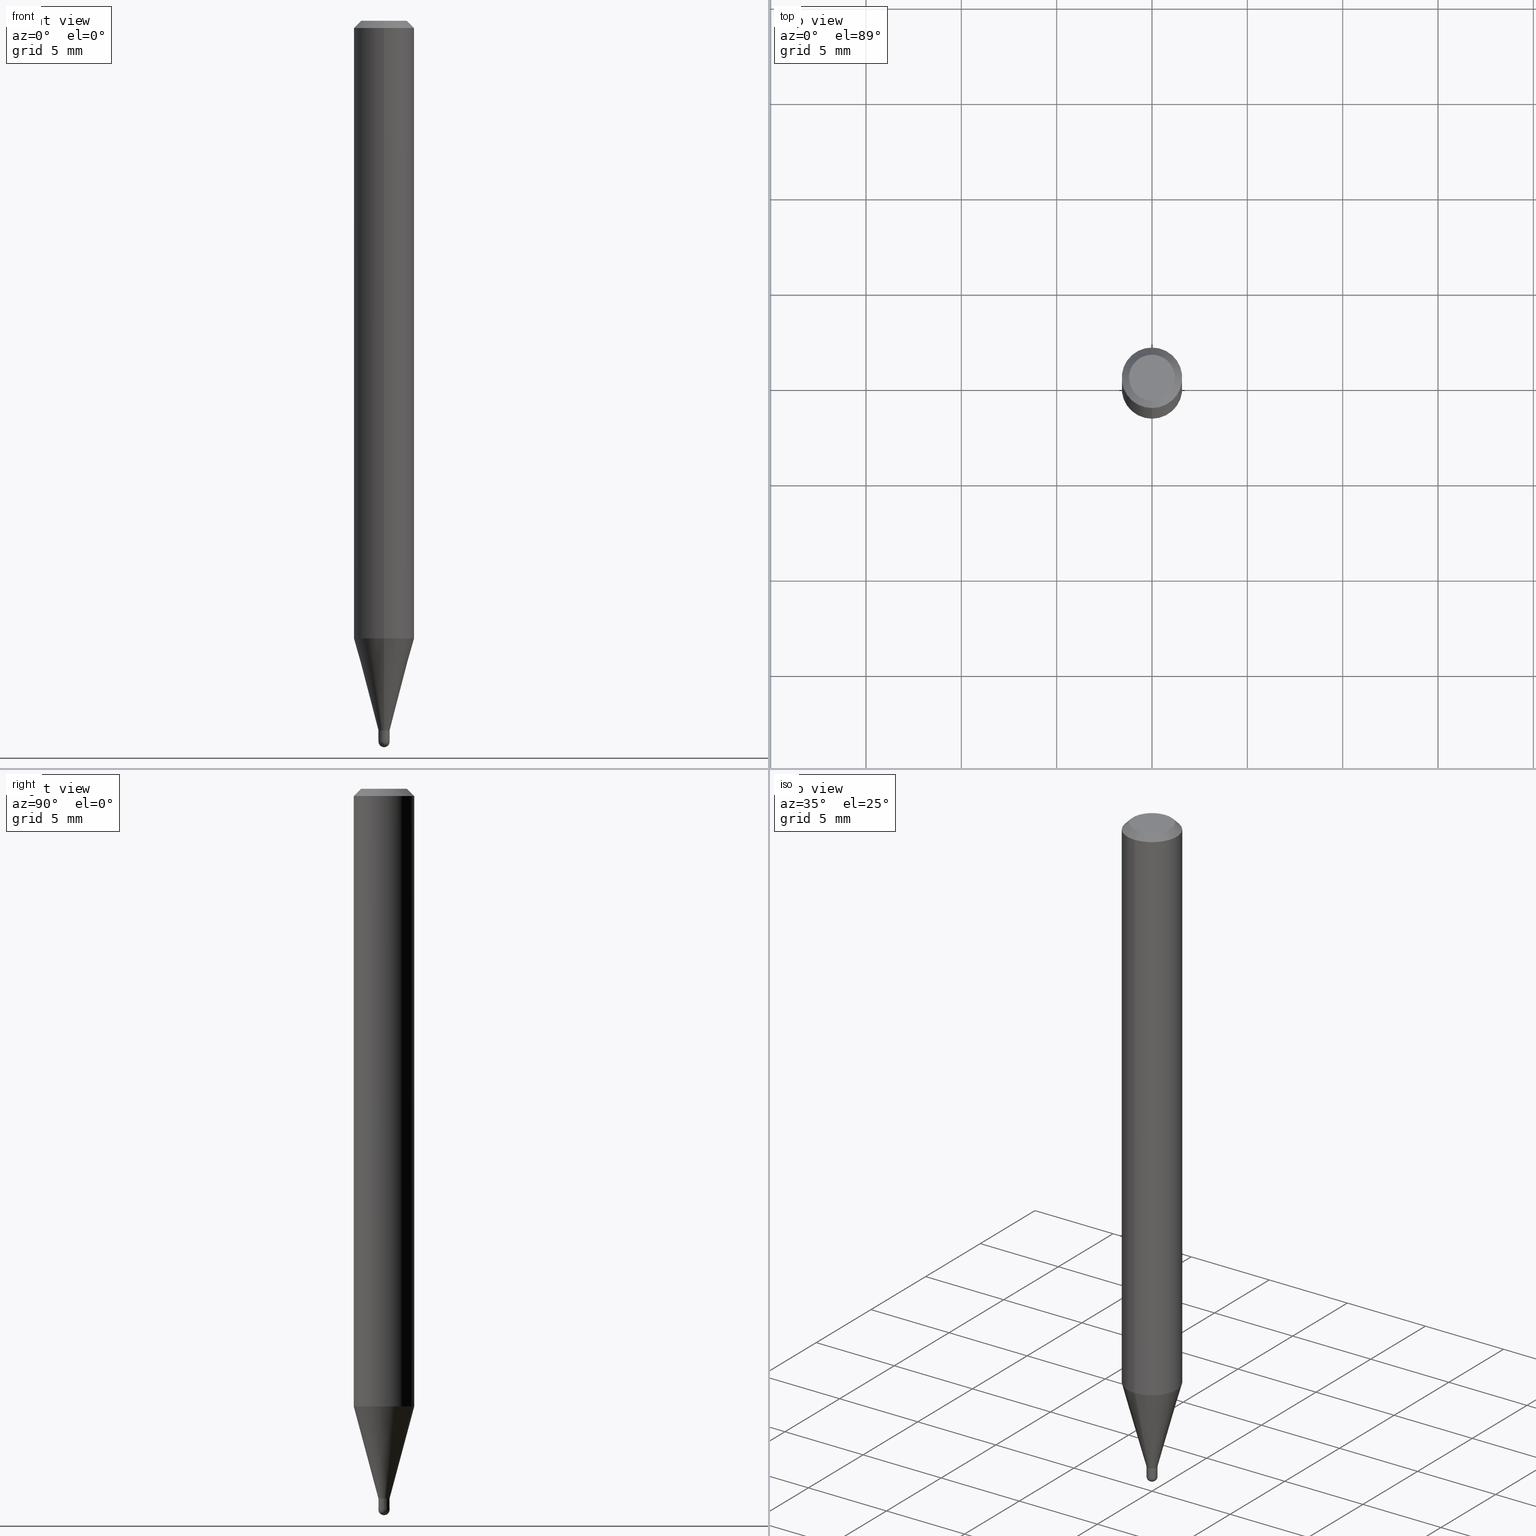
[diagram: canonical four-view strip — front | top / right | iso, engineering-drawing reading convention]
A machine part, canonical four-view strip (front | top / right | iso — engineering-drawing reading convention). The complete STEP part file that produces these views, byte-faithful:
ISO-10303-21;
HEADER;
FILE_DESCRIPTION (( 'STEP AP203' ),
    '1' );
FILE_NAME ('01380.STEP',
    '2024-03-07T20:08:19',
    ( '' ),
    ( '' ),
    'SwSTEP 2.0',
    'SolidWorks 2023',
    '' );
FILE_SCHEMA (( 'CONFIG_CONTROL_DESIGN' ));
ENDSEC;

DATA;
#1 = CIRCLE ( 'NONE', #347, 0.06250000000000000000 ) ;
#2 = AXIS2_PLACEMENT_3D ( 'NONE', #287, #407, #63 ) ;
#3 = ORIENTED_EDGE ( 'NONE', *, *, #451, .F. ) ;
#4 = LINE ( 'NONE', #437, #304 ) ;
#5 = CARTESIAN_POINT ( 'NONE',  ( 3.668214727296404829E-31, -5.237205513806382330E-17, -0.01500000000000000812 ) ) ;
#6 = AXIS2_PLACEMENT_3D ( 'NONE', #339, #112, #258 ) ;
#7 = CONICAL_SURFACE ( 'NONE', #452, 0.01149999999999992521, 0.2617993877991575125 ) ;
#8 = CARTESIAN_POINT ( 'NONE',  ( 0.000000000000000000, 0.000000000000000000, 0.000000000000000000 ) ) ;
#9 = ORIENTED_EDGE ( 'NONE', *, *, #189, .F. ) ;
#10 = CARTESIAN_POINT ( 'NONE',  ( 0.01149999999999999981, -8.030407079339207309E-17, 5.607603292165326057E-31 ) ) ;
#11 = ORIENTED_EDGE ( 'NONE', *, *, #115, .F. ) ;
#12 = EDGE_CURVE ( 'NONE', #363, #406, #186, .T. ) ;
#13 = EDGE_LOOP ( 'NONE', ( #107, #454, #409, #329 ) ) ;
#14 = PLANE ( 'NONE',  #79 ) ;
#15 = EDGE_LOOP ( 'NONE', ( #21, #24, #240, #197 ) ) ;
#16 = CARTESIAN_POINT ( 'NONE',  ( -8.030407079335637713E-17, -0.01150000000000530112, -1.488499999999999934 ) ) ;
#17 = DATE_TIME_ROLE ( 'creation_date' ) ;
#18 = CIRCLE ( 'NONE', #303, 0.04749999999999999362 ) ;
#19 = ORIENTED_EDGE ( 'NONE', *, *, #238, .T. ) ;
#20 = AXIS2_PLACEMENT_3D ( 'NONE', #61, #370, #493 ) ;
#21 = ORIENTED_EDGE ( 'NONE', *, *, #474, .F. ) ;
#22 = CARTESIAN_POINT ( 'NONE',  ( -8.030407079335569920E-17, -0.01150000000000504091, -1.465500000000000025 ) ) ;
#23 = CARTESIAN_POINT ( 'NONE',  ( 3.118387021566951302E-29, -4.452202206703873729E-15, -1.275165408813993206 ) ) ;
#24 = ORIENTED_EDGE ( 'NONE', *, *, #12, .F. ) ;
#25 = PERSON_AND_ORGANIZATION ( #307, #305 ) ;
#26 = DIRECTION ( 'NONE',  ( -2.445468806185136597E-29, 3.491481338843145583E-15, 1.000000000000000000 ) ) ;
#27 = DIRECTION ( 'NONE',  ( 1.000000000000000000, -6.982962677686291165E-15, 0.000000000000000000 ) ) ;
#28 = AXIS2_PLACEMENT_3D ( 'NONE', #23, #496, #419 ) ;
#29 = PERSON_AND_ORGANIZATION ( #307, #305 ) ;
#30 = DIRECTION ( 'NONE',  ( 1.000000000000000000, -6.982962677686267499E-15, 4.876176775795935793E-29 ) ) ;
#31 = VERTEX_POINT ( 'NONE', #268 ) ;
#32 = DIRECTION ( 'NONE',  ( 1.000000000000000000, -6.982962677686291165E-15, 0.000000000000000000 ) ) ;
#33 = FACE_OUTER_BOUND ( 'NONE', #98, .T. ) ;
#34 = DIRECTION ( 'NONE',  ( 7.105427357601001070E-15, 1.000000000000000000, 0.000000000000000000 ) ) ;
#35 = CARTESIAN_POINT ( 'NONE',  ( 3.668214727296404829E-31, -5.237205513806382330E-17, -0.01500000000000000812 ) ) ;
#36 = VERTEX_POINT ( 'NONE', #459 ) ;
#37 = CIRCLE ( 'NONE', #235, 0.01149999999999992521 ) ;
#38 = ORIENTED_EDGE ( 'NONE', *, *, #194, .T. ) ;
#39 = CARTESIAN_POINT ( 'NONE',  ( 3.583845788568584810E-29, -5.116749786988832142E-15, -1.465500000000000025 ) ) ;
#40 = APPROVAL ( #148, 'UNSPECIFIED' ) ;
#41 = ADVANCED_BREP_SHAPE_REPRESENTATION ( '01380', ( #371, #357, #160 ), #188 ) ;
#42 = FACE_OUTER_BOUND ( 'NONE', #291, .T. ) ;
#43 = VERTEX_POINT ( 'NONE', #428 ) ;
#44 = DIRECTION ( 'NONE',  ( -2.445476484864267913E-29, 3.491470342537585919E-15, 1.000000000000000000 ) ) ;
#45 = VECTOR ( 'NONE', #64, 39.37007874015748854 ) ;
#46 = AXIS2_PLACEMENT_3D ( 'NONE', #356, #51, #237 ) ;
#47 = CARTESIAN_POINT ( 'NONE',  ( 3.583834535464318409E-29, -5.116765902074630486E-15, -1.465500000000000247 ) ) ;
#48 = CARTESIAN_POINT ( 'NONE',  ( 8.171241461241097765E-17, 0.01149999999999992521, -4.015190893918197652E-17 ) ) ;
#49 = CARTESIAN_POINT ( 'NONE',  ( -4.364351673553605587E-16, -0.06250000000000446865, -1.275165408813992762 ) ) ;
#50 =( CONVERSION_BASED_UNIT ( 'INCH', #495 ) LENGTH_UNIT ( ) NAMED_UNIT ( #290 ) );
#51 = DIRECTION ( 'NONE',  ( -2.445476484864267913E-29, 3.491470342537585919E-15, 1.000000000000000000 ) ) ;
#52 = CARTESIAN_POINT ( 'NONE',  ( 3.583845788568584810E-29, -5.116749786988832142E-15, -1.465500000000000025 ) ) ;
#53 = AXIS2_PLACEMENT_3D ( 'NONE', #191, #464, #152 ) ;
#54 = VECTOR ( 'NONE', #114, 39.37007874015748143 ) ;
#55 = DIRECTION ( 'NONE',  ( -2.445468806185136597E-29, 3.491481338843145583E-15, 1.000000000000000000 ) ) ;
#56 = PERSON_AND_ORGANIZATION_ROLE ( 'creator' ) ;
#57 = EDGE_LOOP ( 'NONE', ( #443, #136, #479, #214, #358 ) ) ;
#58 = ORIENTED_EDGE ( 'NONE', *, *, #176, .T. ) ;
#59 = ADVANCED_FACE ( 'NONE', ( #33 ), #60, .T. ) ;
#60 = CONICAL_SURFACE ( 'NONE', #181, 0.06250000000000000000, 0.7853981633974483900 ) ;
#61 = CARTESIAN_POINT ( 'NONE',  ( 3.583845788568585931E-29, -5.116749786988832931E-15, -1.465500000000000247 ) ) ;
#62 = ORIENTED_EDGE ( 'NONE', *, *, #252, .F. ) ;
#63 = DIRECTION ( 'NONE',  ( -6.982962677686265922E-15, -1.000000000000000000, 0.000000000000000000 ) ) ;
#64 = DIRECTION ( 'NONE',  ( 1.839019923739649619E-15, 0.2588190451025318972, 0.9659258262890650926 ) ) ;
#65 = DIRECTION ( 'NONE',  ( -6.982962677686265922E-15, -1.000000000000000000, 0.000000000000000000 ) ) ;
#66 = DIRECTION ( 'NONE',  ( -2.445468806185136597E-29, 3.491481338843145583E-15, 1.000000000000000000 ) ) ;
#67 = ORIENTED_EDGE ( 'NONE', *, *, #100, .F. ) ;
#68 = CARTESIAN_POINT ( 'NONE',  ( 8.030407079342789230E-17, 0.01149999999999488411, -1.465500000000000247 ) ) ;
#69 = CIRCLE ( 'NONE', #53, 0.01100000000000000110 ) ;
#70 = AXIS2_PLACEMENT_3D ( 'NONE', #301, #427, #34 ) ;
#71 = DIRECTION ( 'NONE',  ( -2.445476484864267913E-29, 3.491470342537585919E-15, 1.000000000000000000 ) ) ;
#72 = EDGE_CURVE ( 'NONE', #323, #312, #111, .T. ) ;
#73 = DIRECTION ( 'NONE',  ( -6.982962677686265922E-15, -1.000000000000000000, 0.000000000000000000 ) ) ;
#74 = DATE_AND_TIME ( #335, #460 ) ;
#75 = AXIS2_PLACEMENT_3D ( 'NONE', #264, #231, #491 ) ;
#76 = CIRCLE ( 'NONE', #445, 0.01149999999999999981 ) ;
#77 = CARTESIAN_POINT ( 'NONE',  ( 3.640080318006575506E-29, -5.197069972868022017E-15, -1.488499999999999934 ) ) ;
#78 = LINE ( 'NONE', #48, #84 ) ;
#79 = AXIS2_PLACEMENT_3D ( 'NONE', #135, #321, #404 ) ;
#80 = CC_DESIGN_APPROVAL ( #477, ( #398 ) ) ;
#81 = EDGE_CURVE ( 'NONE', #243, #85, #69, .T. ) ;
#82 = APPROVAL_ROLE ( '' ) ;
#83 = CYLINDRICAL_SURFACE ( 'NONE', #262, 0.01149999999999999981 ) ;
#84 = VECTOR ( 'NONE', #313, 39.37007874015748143 ) ;
#85 = VERTEX_POINT ( 'NONE', #306 ) ;
#86 = APPLICATION_PROTOCOL_DEFINITION ( 'international standard', 'config_control_design', 1994, #251 ) ;
#87 = EDGE_LOOP ( 'NONE', ( #206, #244, #311, #359 ) ) ;
#88 = CARTESIAN_POINT ( 'NONE',  ( 3.840629472727447874E-16, 0.04749999999999999362, -1.747056831868805136E-16 ) ) ;
#89 = EDGE_LOOP ( 'NONE', ( #205, #327, #92, #161 ) ) ;
#90 = DIRECTION ( 'NONE',  ( -6.982962677686265922E-15, -1.000000000000000000, 3.491470342537585919E-15 ) ) ;
#91 = CALENDAR_DATE ( 2024, 7, 3 ) ;
#92 = ORIENTED_EDGE ( 'NONE', *, *, #401, .T. ) ;
#93 = ORIENTED_EDGE ( 'NONE', *, *, #102, .F. ) ;
#94 = ADVANCED_FACE ( 'NONE', ( #143 ), #224, .T. ) ;
#95 = ORIENTED_EDGE ( 'NONE', *, *, #387, .T. ) ;
#96 = DIRECTION ( 'NONE',  ( -2.445468806185136597E-29, 3.491481338843145583E-15, 1.000000000000000000 ) ) ;
#97 = AXIS2_PLACEMENT_3D ( 'NONE', #227, #257, #65 ) ;
#98 = EDGE_LOOP ( 'NONE', ( #67, #163, #450, #177 ) ) ;
#99 = CIRCLE ( 'NONE', #70, 0.01150000000000020450 ) ;
#100 = EDGE_CURVE ( 'NONE', #319, #242, #461, .T. ) ;
#101 = CARTESIAN_POINT ( 'NONE',  ( 0.000000000000000000, 0.000000000000000000, 0.000000000000000000 ) ) ;
#102 = EDGE_CURVE ( 'NONE', #406, #363, #108, .T. ) ;
#103 = CALENDAR_DATE ( 2024, 7, 3 ) ;
#104 = DIRECTION ( 'NONE',  ( 2.445476484864267913E-29, -3.491470342537585919E-15, -1.000000000000000000 ) ) ;
#105 = EDGE_CURVE ( 'NONE', #456, #416, #423, .T. ) ;
#106 = DIRECTION ( 'NONE',  ( -6.982962677686265922E-15, -1.000000000000000000, 0.000000000000000000 ) ) ;
#107 = ORIENTED_EDGE ( 'NONE', *, *, #334, .F. ) ;
#108 = CIRCLE ( 'NONE', #187, 0.01149999999999992521 ) ;
#109 = LOCAL_TIME ( 15, 8, 19.00000000000000000, #162 ) ;
#110 = CARTESIAN_POINT ( 'NONE',  ( 3.640080318006575506E-29, -5.197069972868022017E-15, -1.488499999999999934 ) ) ;
#111 = LINE ( 'NONE', #431, #444 ) ;
#112 = DIRECTION ( 'NONE',  ( 1.000000000000000000, -6.982962677686265922E-15, 4.883557194083112901E-29 ) ) ;
#113 = DATE_AND_TIME ( #504, #353 ) ;
#114 = DIRECTION ( 'NONE',  ( -2.445476484864267913E-29, 3.491470342537585919E-15, 1.000000000000000000 ) ) ;
#115 = EDGE_CURVE ( 'NONE', #242, #312, #324, .T. ) ;
#116 = FACE_OUTER_BOUND ( 'NONE', #320, .T. ) ;
#117 = ADVANCED_FACE ( 'NONE', ( #222 ), #385, .F. ) ;
#118 = CIRCLE ( 'NONE', #397, 0.01149999999999999981 ) ;
#119 = APPROVAL_PERSON_ORGANIZATION ( #277, #201, #82 ) ;
#120 =( NAMED_UNIT ( * ) PLANE_ANGLE_UNIT ( ) SI_UNIT ( $, .RADIAN. ) );
#121 = DIRECTION ( 'NONE',  ( 2.445476484864267913E-29, -3.491470342537585919E-15, -1.000000000000000000 ) ) ;
#122 = AXIS2_PLACEMENT_3D ( 'NONE', #5, #121, #436 ) ;
#123 = CARTESIAN_POINT ( 'NONE',  ( -4.364351673553912750E-16, -0.06250000000000005551, -0.01499999999999979128 ) ) ;
#124 = PERSON_AND_ORGANIZATION_ROLE ( 'design_owner' ) ;
#125 = CC_DESIGN_PERSON_AND_ORGANIZATION_ASSIGNMENT ( #247, #56, ( #455 ) ) ;
#126 = ADVANCED_FACE ( 'NONE', ( #333 ), #338, .F. ) ;
#127 = VERTEX_POINT ( 'NONE', #185 ) ;
#128 = CARTESIAN_POINT ( 'NONE',  ( 2.166898054252176788E-46, -3.093736676083309721E-32, -8.860841916345176913E-18 ) ) ;
#129 = CIRCLE ( 'NONE', #314, 0.04749999999999999362 ) ;
#130 = CC_DESIGN_APPROVAL ( #201, ( #455 ) ) ;
#131 = FACE_OUTER_BOUND ( 'NONE', #439, .T. ) ;
#132 = EDGE_LOOP ( 'NONE', ( #289, #279 ) ) ;
#133 = APPROVAL_STATUS ( 'not_yet_approved' ) ;
#134 = EDGE_CURVE ( 'NONE', #127, #413, #37, .T. ) ;
#135 = CARTESIAN_POINT ( 'NONE',  ( 3.316907271900976096E-16, 0.04749999999999999362, -1.702752622287078928E-16 ) ) ;
#136 = ORIENTED_EDGE ( 'NONE', *, *, #376, .T. ) ;
#137 = CARTESIAN_POINT ( 'NONE',  ( 3.640080318006575506E-29, -5.197069972868022017E-15, -1.488499999999999934 ) ) ;
#138 = ORIENTED_EDGE ( 'NONE', *, *, #166, .T. ) ;
#139 = UNCERTAINTY_MEASURE_WITH_UNIT (LENGTH_MEASURE( 1.000000000000000082E-05 ), #50, 'distance_accuracy_value', 'NONE');
#140 = AXIS2_PLACEMENT_3D ( 'NONE', #217, #26, #180 ) ;
#141 = LOCAL_TIME ( 15, 8, 19.00000000000000000, #239 ) ;
#142 = ADVANCED_FACE ( 'NONE', ( #267 ), #508, .F. ) ;
#143 = FACE_OUTER_BOUND ( 'NONE', #190, .T. ) ;
#144 = CARTESIAN_POINT ( 'NONE',  ( 3.668214727296404829E-31, -5.237205513806382330E-17, -0.01500000000000000812 ) ) ;
#145 = PERSON_AND_ORGANIZATION_ROLE ( 'classification_officer' ) ;
#146 = DIRECTION ( 'NONE',  ( 6.982962677686265922E-15, 1.000000000000000000, -3.483106191921935554E-15 ) ) ;
#147 = ORIENTED_EDGE ( 'NONE', *, *, #252, .T. ) ;
#148 = APPROVAL_STATUS ( 'not_yet_approved' ) ;
#149 = DIRECTION ( 'NONE',  ( -1.000000000000000000, 6.982962677686265922E-15, -4.876176775795935793E-29 ) ) ;
#150 = CONICAL_SURFACE ( 'NONE', #122, 0.06250000000000000000, 0.7853981633974483900 ) ;
#151 = APPROVAL_PERSON_ORGANIZATION ( #178, #40, #426 ) ;
#152 = DIRECTION ( 'NONE',  ( -6.982962677686265922E-15, -1.000000000000000000, 0.000000000000000000 ) ) ;
#153 = DIRECTION ( 'NONE',  ( -2.445476484864267913E-29, 3.491470342537585919E-15, 1.000000000000000000 ) ) ;
#154 = VECTOR ( 'NONE', #505, 39.37007874015748143 ) ;
#155 = DIRECTION ( 'NONE',  ( -6.982962677686266711E-15, -1.000000000000000000, 3.491470342537586314E-15 ) ) ;
#156 = DIRECTION ( 'NONE',  ( -2.445476484864267913E-29, 3.491470342537585919E-15, 1.000000000000000000 ) ) ;
#157 =( NAMED_UNIT ( * ) SI_UNIT ( $, .STERADIAN. ) SOLID_ANGLE_UNIT ( ) );
#158 = EDGE_CURVE ( 'NONE', #392, #43, #293, .T. ) ;
#159 = CIRCLE ( 'NONE', #365, 0.01149999999999999981 ) ;
#160 = AXIS2_PLACEMENT_3D ( 'NONE', #8, #212, #172 ) ;
#161 = ORIENTED_EDGE ( 'NONE', *, *, #318, .F. ) ;
#162 = COORDINATED_UNIVERSAL_TIME_OFFSET ( 5, 0, .BEHIND. ) ;
#163 = ORIENTED_EDGE ( 'NONE', *, *, #346, .F. ) ;
#164 = DESIGN_CONTEXT ( 'detailed design', #251, 'design' ) ;
#165 = ORIENTED_EDGE ( 'NONE', *, *, #105, .T. ) ;
#166 = EDGE_CURVE ( 'NONE', #36, #312, #499, .T. ) ;
#167 = CALENDAR_DATE ( 2024, 7, 3 ) ;
#168 = DIRECTION ( 'NONE',  ( 1.000000000000000000, -6.982962677686267499E-15, 4.876176775795935793E-29 ) ) ;
#169 = AXIS2_PLACEMENT_3D ( 'NONE', #68, #506, #149 ) ;
#170 = ORIENTED_EDGE ( 'NONE', *, *, #474, .T. ) ;
#171 = ADVANCED_FACE ( 'NONE', ( #349 ), #203, .T. ) ;
#172 = DIRECTION ( 'NONE',  ( 1.000000000000000000, 0.000000000000000000, 0.000000000000000000 ) ) ;
#173 = ORIENTED_EDGE ( 'NONE', *, *, #472, .F. ) ;
#174 = DIRECTION ( 'NONE',  ( -1.807323732225379049E-15, -0.2588190451025252359, 0.9659258262890670910 ) ) ;
#175 = CYLINDRICAL_SURFACE ( 'NONE', #381, 0.01149999999999999981 ) ;
#176 = EDGE_CURVE ( 'NONE', #85, #243, #270, .T. ) ;
#177 = ORIENTED_EDGE ( 'NONE', *, *, #318, .T. ) ;
#178 = PERSON_AND_ORGANIZATION ( #307, #305 ) ;
#179 = CARTESIAN_POINT ( 'NONE',  ( -0.01149999999999999981, 8.171241461241151999E-17, -5.656775353793142476E-31 ) ) ;
#180 = DIRECTION ( 'NONE',  ( 1.000000000000000000, -6.982962677686291165E-15, 0.000000000000000000 ) ) ;
#181 = AXIS2_PLACEMENT_3D ( 'NONE', #336, #104, #146 ) ;
#182 = CARTESIAN_POINT ( 'NONE',  ( 4.440892098500939734E-16, 0.06249999999999995143, -0.01500000000000022669 ) ) ;
#183 = DIRECTION ( 'NONE',  ( -2.445476484864267913E-29, 3.491470342537585919E-15, 1.000000000000000000 ) ) ;
#184 = CARTESIAN_POINT ( 'NONE',  ( 0.01149999999999999981, -5.237222008264718177E-15, -1.488499999999999934 ) ) ;
#185 = CARTESIAN_POINT ( 'NONE',  ( 8.171241461244652570E-17, 0.01149999999999477308, -1.465000000000000302 ) ) ;
#186 = CIRCLE ( 'NONE', #498, 0.01149999999999992521 ) ;
#187 = AXIS2_PLACEMENT_3D ( 'NONE', #502, #71, #510 ) ;
#188 =( GEOMETRIC_REPRESENTATION_CONTEXT ( 3 ) GLOBAL_UNCERTAINTY_ASSIGNED_CONTEXT ( ( #139 ) ) GLOBAL_UNIT_ASSIGNED_CONTEXT ( ( #50, #120, #157 ) ) REPRESENTATION_CONTEXT ( 'NONE', 'WORKASPACE' ) );
#189 = EDGE_CURVE ( 'NONE', #363, #215, #373, .T. ) ;
#190 = EDGE_LOOP ( 'NONE', ( #281, #95, #420, #223 ) ) ;
#191 = CARTESIAN_POINT ( 'NONE',  ( 3.583845788568585931E-29, -5.116749786988832931E-15, -1.465500000000000247 ) ) ;
#192 = EDGE_CURVE ( 'NONE', #413, #127, #236, .T. ) ;
#193 = CARTESIAN_POINT ( 'NONE',  ( 2.629008122312704344E-16, 0.01149999999999480951, -1.465500000000000025 ) ) ;
#194 = EDGE_CURVE ( 'NONE', #215, #36, #393, .T. ) ;
#195 = DIRECTION ( 'NONE',  ( -6.982962677686266711E-15, -1.000000000000000000, 0.000000000000000000 ) ) ;
#196 = AXIS2_PLACEMENT_3D ( 'NONE', #360, #211, #90 ) ;
#197 = ORIENTED_EDGE ( 'NONE', *, *, #192, .T. ) ;
#198 = DIRECTION ( 'NONE',  ( -2.445468806185136877E-29, 3.491481338843145188E-15, 1.000000000000000000 ) ) ;
#199 = ADVANCED_FACE ( 'NONE', ( #42 ), #441, .T. ) ;
#200 = CC_DESIGN_APPROVAL ( #40, ( #475 ) ) ;
#201 = APPROVAL ( #403, 'UNSPECIFIED' ) ;
#202 = DIRECTION ( 'NONE',  ( 1.000000000000000000, -6.982962677686291165E-15, 0.000000000000000000 ) ) ;
#203 = SPHERICAL_SURFACE ( 'NONE', #6, 0.01150000000000020450 ) ;
#204 = EDGE_LOOP ( 'NONE', ( #93, #170, #447, #173 ) ) ;
#205 = ORIENTED_EDGE ( 'NONE', *, *, #166, .F. ) ;
#206 = ORIENTED_EDGE ( 'NONE', *, *, #438, .F. ) ;
#207 = VERTEX_POINT ( 'NONE', #219 ) ;
#208 = EDGE_CURVE ( 'NONE', #319, #323, #129, .T. ) ;
#209 = DIRECTION ( 'NONE',  ( 5.024295867788190974E-15, 0.7071067811865681119, 0.7071067811865270336 ) ) ;
#210 = CC_DESIGN_SECURITY_CLASSIFICATION ( #475, ( #398 ) ) ;
#211 = DIRECTION ( 'NONE',  ( -2.445476484864267913E-29, 3.491470342537585919E-15, 1.000000000000000000 ) ) ;
#212 = DIRECTION ( 'NONE',  ( 0.000000000000000000, 0.000000000000000000, 1.000000000000000000 ) ) ;
#213 = DIRECTION ( 'NONE',  ( -2.445476484864267913E-29, 3.491470342537585919E-15, 1.000000000000000000 ) ) ;
#214 = ORIENTED_EDGE ( 'NONE', *, *, #238, .F. ) ;
#215 = VERTEX_POINT ( 'NONE', #49 ) ;
#216 = DATE_TIME_ROLE ( 'classification_date' ) ;
#217 = CARTESIAN_POINT ( 'NONE',  ( 3.640080318006575506E-29, -5.197069972868022017E-15, -1.488499999999999934 ) ) ;
#218 = CARTESIAN_POINT ( 'NONE',  ( 3.639096876774019405E-29, -5.198478316687040897E-15, -1.488499999999999934 ) ) ;
#219 = CARTESIAN_POINT ( 'NONE',  ( -0.01149999999999999981, -5.075205522858914658E-15, -1.465500000000000247 ) ) ;
#220 = VECTOR ( 'NONE', #198, 39.37007874015748143 ) ;
#221 = CONICAL_SURFACE ( 'NONE', #46, 0.01100000000000000110, 0.7853981633974739252 ) ;
#222 = FACE_OUTER_BOUND ( 'NONE', #204, .T. ) ;
#223 = ORIENTED_EDGE ( 'NONE', *, *, #273, .F. ) ;
#224 = SPHERICAL_SURFACE ( 'NONE', #97, 0.01150000000000020450 ) ;
#225 = PRODUCT_DEFINITION_SHAPE ( 'NONE', 'NONE',  #455 ) ;
#226 = DATE_AND_TIME ( #103, #263 ) ;
#227 = CARTESIAN_POINT ( 'NONE',  ( 3.639096876774019405E-29, -5.198478316687040897E-15, -1.488499999999999934 ) ) ;
#228 = VECTOR ( 'NONE', #174, 39.37007874015748854 ) ;
#229 = CARTESIAN_POINT ( 'NONE',  ( -7.681258945451309882E-17, -0.01100000000000511680, -1.465500000000000247 ) ) ;
#230 = ORIENTED_EDGE ( 'NONE', *, *, #100, .T. ) ;
#231 = DIRECTION ( 'NONE',  ( -2.445476484864267913E-29, 3.491470342537585919E-15, 1.000000000000000000 ) ) ;
#232 = APPLICATION_CONTEXT ( 'configuration controlled 3d designs of mechanical parts and assemblies' ) ;
#233 = DIRECTION ( 'NONE',  ( -2.445476484864267913E-29, 3.491470342537585919E-15, 1.000000000000000000 ) ) ;
#234 = DIRECTION ( 'NONE',  ( -2.445476484864267913E-29, 3.491470342537585919E-15, 1.000000000000000000 ) ) ;
#235 = AXIS2_PLACEMENT_3D ( 'NONE', #453, #342, #302 ) ;
#236 = CIRCLE ( 'NONE', #433, 0.01149999999999992521 ) ;
#237 = DIRECTION ( 'NONE',  ( -6.982962677686265922E-15, -1.000000000000000000, 0.000000000000000000 ) ) ;
#238 = EDGE_CURVE ( 'NONE', #392, #449, #481, .T. ) ;
#239 = COORDINATED_UNIVERSAL_TIME_OFFSET ( 5, 0, .BEHIND. ) ;
#240 = ORIENTED_EDGE ( 'NONE', *, *, #472, .T. ) ;
#241 = AXIS2_PLACEMENT_3D ( 'NONE', #137, #66, #27 ) ;
#242 = VERTEX_POINT ( 'NONE', #123 ) ;
#243 = VERTEX_POINT ( 'NONE', #317 ) ;
#244 = ORIENTED_EDGE ( 'NONE', *, *, #81, .T. ) ;
#245 = ORIENTED_EDGE ( 'NONE', *, *, #72, .F. ) ;
#246 = CARTESIAN_POINT ( 'NONE',  ( 3.583845788568585931E-29, -5.116749786988832931E-15, -1.465500000000000247 ) ) ;
#247 = PERSON_AND_ORGANIZATION ( #307, #305 ) ;
#248 = DIRECTION ( 'NONE',  ( -2.445468806185136597E-29, 3.491481338843145583E-15, 1.000000000000000000 ) ) ;
#249 = ORIENTED_EDGE ( 'NONE', *, *, #194, .F. ) ;
#250 = AXIS2_PLACEMENT_3D ( 'NONE', #218, #299, #106 ) ;
#251 = APPLICATION_CONTEXT ( 'configuration controlled 3d designs of mechanical parts and assemblies' ) ;
#252 = EDGE_CURVE ( 'NONE', #207, #449, #159, .T. ) ;
#253 = CARTESIAN_POINT ( 'NONE',  ( 3.582623050326153379E-29, -5.115004051817564467E-15, -1.465000000000000302 ) ) ;
#254 = FACE_OUTER_BOUND ( 'NONE', #57, .T. ) ;
#255 = DIRECTION ( 'NONE',  ( -2.445476484864267913E-29, 3.491470342537585919E-15, 1.000000000000000000 ) ) ;
#256 = ORIENTED_EDGE ( 'NONE', *, *, #492, .T. ) ;
#257 = DIRECTION ( 'NONE',  ( 1.000000000000000000, -6.982962677686265922E-15, 4.883557194083112901E-29 ) ) ;
#258 = DIRECTION ( 'NONE',  ( -6.982962677686265922E-15, -1.000000000000000000, 0.000000000000000000 ) ) ;
#259 = COORDINATED_UNIVERSAL_TIME_OFFSET ( 5, 0, .BEHIND. ) ;
#260 = ORIENTED_EDGE ( 'NONE', *, *, #115, .T. ) ;
#261 = ADVANCED_FACE ( 'NONE', ( #278 ), #150, .T. ) ;
#262 = AXIS2_PLACEMENT_3D ( 'NONE', #294, #96, #168 ) ;
#263 = LOCAL_TIME ( 15, 8, 19.00000000000000000, #259 ) ;
#264 = CARTESIAN_POINT ( 'NONE',  ( 0.000000000000000000, 0.000000000000000000, 0.000000000000000000 ) ) ;
#265 = SECURITY_CLASSIFICATION_LEVEL ( 'unclassified' ) ;
#266 = DIRECTION ( 'NONE',  ( -2.445468806185136597E-29, 3.491481338843145583E-15, 1.000000000000000000 ) ) ;
#267 = FACE_OUTER_BOUND ( 'NONE', #15, .T. ) ;
#268 = CARTESIAN_POINT ( 'NONE',  ( -0.01149999999999999981, -5.075205522858914658E-15, -1.488499999999999934 ) ) ;
#269 = LINE ( 'NONE', #229, #344 ) ;
#270 = CIRCLE ( 'NONE', #379, 0.01100000000000000110 ) ;
#271 = PRODUCT_RELATED_PRODUCT_CATEGORY ( 'detail', '', ( #272 ) ) ;
#272 = PRODUCT ( '01380', '01380', '', ( #283 ) ) ;
#273 = EDGE_CURVE ( 'NONE', #416, #392, #118, .T. ) ;
#274 = ORIENTED_EDGE ( 'NONE', *, *, #438, .T. ) ;
#275 = CIRCLE ( 'NONE', #28, 0.06250000000000000000 ) ;
#276 = LINE ( 'NONE', #286, #412 ) ;
#277 = PERSON_AND_ORGANIZATION ( #307, #305 ) ;
#278 = FACE_OUTER_BOUND ( 'NONE', #402, .T. ) ;
#279 = ORIENTED_EDGE ( 'NONE', *, *, #208, .T. ) ;
#280 = EDGE_CURVE ( 'NONE', #36, #215, #275, .T. ) ;
#281 = ORIENTED_EDGE ( 'NONE', *, *, #105, .F. ) ;
#282 = AXIS2_PLACEMENT_3D ( 'NONE', #52, #156, #465 ) ;
#283 = MECHANICAL_CONTEXT ( 'NONE', #232, 'mechanical' ) ;
#284 = FACE_OUTER_BOUND ( 'NONE', #132, .T. ) ;
#285 = CARTESIAN_POINT ( 'NONE',  ( -3.773273898774340269E-16, -0.04749999999999999362, 1.569839993541901536E-16 ) ) ;
#286 = CARTESIAN_POINT ( 'NONE',  ( 7.815970093364684745E-17, 0.01099999999999488540, -1.465500000000000247 ) ) ;
#287 = CARTESIAN_POINT ( 'NONE',  ( 3.583845788568585931E-29, -5.116749786988832931E-15, -1.465500000000000247 ) ) ;
#288 = CARTESIAN_POINT ( 'NONE',  ( -8.030407079335569920E-17, -0.01150000000000504091, -1.465500000000000025 ) ) ;
#289 = ORIENTED_EDGE ( 'NONE', *, *, #346, .T. ) ;
#290 = DIMENSIONAL_EXPONENTS ( 1.000000000000000000, 0.000000000000000000, 0.000000000000000000, 0.000000000000000000, 0.000000000000000000, 0.000000000000000000, 0.000000000000000000 ) ;
#291 = EDGE_LOOP ( 'NONE', ( #38, #138, #11, #490 ) ) ;
#292 = ORIENTED_EDGE ( 'NONE', *, *, #273, .T. ) ;
#293 = CIRCLE ( 'NONE', #140, 0.01149999999999999981 ) ;
#294 = CARTESIAN_POINT ( 'NONE',  ( 0.000000000000000000, 0.000000000000000000, 0.000000000000000000 ) ) ;
#295 = DIRECTION ( 'NONE',  ( -2.445476484864267913E-29, 3.491470342537585919E-15, 1.000000000000000000 ) ) ;
#296 = ADVANCED_FACE ( 'NONE', ( #131 ), #489, .F. ) ;
#297 = DIRECTION ( 'NONE',  ( -2.445476484864267913E-29, 3.491470342537585919E-15, 1.000000000000000000 ) ) ;
#298 = COORDINATED_UNIVERSAL_TIME_OFFSET ( 5, 0, .BEHIND. ) ;
#299 = DIRECTION ( 'NONE',  ( -1.000000000000000000, 6.982962677686265922E-15, -4.883557194083112340E-29 ) ) ;
#300 = APPROVAL_DATE_TIME ( #113, #40 ) ;
#301 = CARTESIAN_POINT ( 'NONE',  ( 3.639096876774019405E-29, -5.198478316687040897E-15, -1.488499999999999934 ) ) ;
#302 = DIRECTION ( 'NONE',  ( -6.982962677686266711E-15, -1.000000000000000000, 0.000000000000000000 ) ) ;
#303 = AXIS2_PLACEMENT_3D ( 'NONE', #128, #213, #488 ) ;
#304 = VECTOR ( 'NONE', #44, 39.37007874015748143 ) ;
#305 = ORGANIZATION ( 'UNSPECIFIED', 'UNSPECIFIED', '' ) ;
#306 = CARTESIAN_POINT ( 'NONE',  ( -7.681258945451309882E-17, -0.01100000000000511680, -1.465500000000000247 ) ) ;
#307 = PERSON ( 'UNSPECIFIED', 'UNSPECIFIED', 'UNSPECIFIED', ('UNSPECIFIED'), ('UNSPECIFIED'), ('UNSPECIFIED') ) ;
#308 = DIRECTION ( 'NONE',  ( -2.445476484864267913E-29, 3.491470342537585919E-15, 1.000000000000000000 ) ) ;
#309 = EDGE_CURVE ( 'NONE', #31, #416, #352, .T. ) ;
#310 = CARTESIAN_POINT ( 'NONE',  ( 2.166898054252176788E-46, -3.093736676083309721E-32, -8.860841916345176913E-18 ) ) ;
#311 = ORIENTED_EDGE ( 'NONE', *, *, #451, .T. ) ;
#312 = VERTEX_POINT ( 'NONE', #182 ) ;
#313 = DIRECTION ( 'NONE',  ( -2.445476484864267913E-29, 3.491470342537585919E-15, 1.000000000000000000 ) ) ;
#314 = AXIS2_PLACEMENT_3D ( 'NONE', #310, #153, #155 ) ;
#315 = AXIS2_PLACEMENT_3D ( 'NONE', #432, #55, #202 ) ;
#316 = PERSON_AND_ORGANIZATION ( #307, #305 ) ;
#317 = CARTESIAN_POINT ( 'NONE',  ( 7.993605777304682832E-17, 0.01099999999999488540, -1.465500000000000247 ) ) ;
#318 = EDGE_CURVE ( 'NONE', #312, #242, #1, .T. ) ;
#319 = VERTEX_POINT ( 'NONE', #285 ) ;
#320 = EDGE_LOOP ( 'NONE', ( #368, #400, #249, #9 ) ) ;
#321 = DIRECTION ( 'NONE',  ( 2.445476484864267913E-29, -3.491470342537585919E-15, -1.000000000000000000 ) ) ;
#322 = DIRECTION ( 'NONE',  ( -6.982962677686265922E-15, -1.000000000000000000, 3.483106191921935554E-15 ) ) ;
#323 = VERTEX_POINT ( 'NONE', #88 ) ;
#324 = CIRCLE ( 'NONE', #343, 0.06250000000000000000 ) ;
#325 = FACE_OUTER_BOUND ( 'NONE', #87, .T. ) ;
#326 = PERSON_AND_ORGANIZATION ( #307, #305 ) ;
#327 = ORIENTED_EDGE ( 'NONE', *, *, #280, .T. ) ;
#328 = ADVANCED_FACE ( 'NONE', ( #254 ), #83, .T. ) ;
#329 = ORIENTED_EDGE ( 'NONE', *, *, #280, .F. ) ;
#330 = CARTESIAN_POINT ( 'NONE',  ( 0.000000000000000000, 0.000000000000000000, 0.000000000000000000 ) ) ;
#331 = ORIENTED_EDGE ( 'NONE', *, *, #376, .F. ) ;
#332 = AXIS2_PLACEMENT_3D ( 'NONE', #421, #183, #457 ) ;
#333 = FACE_OUTER_BOUND ( 'NONE', #501, .T. ) ;
#334 = EDGE_CURVE ( 'NONE', #406, #36, #399, .T. ) ;
#335 = CALENDAR_DATE ( 2024, 7, 3 ) ;
#336 = CARTESIAN_POINT ( 'NONE',  ( 3.668214727296404829E-31, -5.237205513806382330E-17, -0.01500000000000000812 ) ) ;
#337 = LINE ( 'NONE', #179, #154 ) ;
#338 = PLANE ( 'NONE',  #169 ) ;
#339 = CARTESIAN_POINT ( 'NONE',  ( 3.639096876774019405E-29, -5.198478316687040897E-15, -1.488499999999999934 ) ) ;
#340 = PERSON_AND_ORGANIZATION_ROLE ( 'creator' ) ;
#341 = CARTESIAN_POINT ( 'NONE',  ( -4.364351673553916201E-16, -0.06250000000000000000, 2.182168964085991200E-16 ) ) ;
#342 = DIRECTION ( 'NONE',  ( -2.445476484864267913E-29, 3.491470342537585919E-15, 1.000000000000000000 ) ) ;
#343 = AXIS2_PLACEMENT_3D ( 'NONE', #35, #297, #425 ) ;
#344 = VECTOR ( 'NONE', #435, 39.37007874015748143 ) ;
#345 = CARTESIAN_POINT ( 'NONE',  ( -4.287811248607203282E-16, -0.06250000000000005551, -0.01499999999999979128 ) ) ;
#346 = EDGE_CURVE ( 'NONE', #323, #319, #18, .T. ) ;
#347 = AXIS2_PLACEMENT_3D ( 'NONE', #144, #442, #322 ) ;
#348 = CIRCLE ( 'NONE', #315, 0.01149999999999999981 ) ;
#349 = FACE_OUTER_BOUND ( 'NONE', #415, .T. ) ;
#350 = DIRECTION ( 'NONE',  ( -2.445468806185136597E-29, 3.491481338843145583E-15, 1.000000000000000000 ) ) ;
#351 = ADVANCED_FACE ( 'NONE', ( #284 ), #14, .F. ) ;
#352 = CIRCLE ( 'NONE', #241, 0.01149999999999999981 ) ;
#353 = LOCAL_TIME ( 15, 8, 19.00000000000000000, #298 ) ;
#354 = CC_DESIGN_DATE_AND_TIME_ASSIGNMENT ( #478, #17, ( #455 ) ) ;
#355 = EDGE_LOOP ( 'NONE', ( #331, #405, #292, #19, #62 ) ) ;
#356 = CARTESIAN_POINT ( 'NONE',  ( 3.583845788568585931E-29, -5.116749786988832931E-15, -1.465500000000000247 ) ) ;
#357 = MANIFOLD_SOLID_BREP ( 'Body-Move/Copy2[2]', #410 ) ;
#358 = ORIENTED_EDGE ( 'NONE', *, *, #158, .T. ) ;
#359 = ORIENTED_EDGE ( 'NONE', *, *, #134, .F. ) ;
#360 = CARTESIAN_POINT ( 'NONE',  ( 0.000000000000000000, 0.000000000000000000, 0.000000000000000000 ) ) ;
#361 = CARTESIAN_POINT ( 'NONE',  ( -8.030407079335599503E-17, -0.01150000000000507734, -1.465000000000000302 ) ) ;
#362 = EDGE_LOOP ( 'NONE', ( #58, #274, #364, #3 ) ) ;
#363 = VERTEX_POINT ( 'NONE', #288 ) ;
#364 = ORIENTED_EDGE ( 'NONE', *, *, #192, .F. ) ;
#365 = AXIS2_PLACEMENT_3D ( 'NONE', #47, #350, #470 ) ;
#366 = ADVANCED_FACE ( 'NONE', ( #375 ), #175, .T. ) ;
#367 = CONICAL_SURFACE ( 'NONE', #282, 0.01149999999999992521, 0.2617993877991575125 ) ;
#368 = ORIENTED_EDGE ( 'NONE', *, *, #12, .T. ) ;
#369 = ORIENTED_EDGE ( 'NONE', *, *, #176, .F. ) ;
#370 = DIRECTION ( 'NONE',  ( -2.445476484864267913E-29, 3.491470342537585919E-15, 1.000000000000000000 ) ) ;
#371 = MANIFOLD_SOLID_BREP ( 'Body-Move/Copy2[1]', #497 ) ;
#372 = FACE_OUTER_BOUND ( 'NONE', #13, .T. ) ;
#373 = LINE ( 'NONE', #22, #228 ) ;
#374 = APPLICATION_PROTOCOL_DEFINITION ( 'international standard', 'config_control_design', 1994, #232 ) ;
#375 = FACE_OUTER_BOUND ( 'NONE', #355, .T. ) ;
#376 = EDGE_CURVE ( 'NONE', #31, #207, #337, .T. ) ;
#377 = DIRECTION ( 'NONE',  ( 4.937700262164548042E-15, 0.7071067811865451302, -0.7071067811865499042 ) ) ;
#378 = EDGE_CURVE ( 'NONE', #43, #31, #76, .T. ) ;
#379 = AXIS2_PLACEMENT_3D ( 'NONE', #246, #422, #73 ) ;
#380 = PERSON_AND_ORGANIZATION_ROLE ( 'design_supplier' ) ;
#381 = AXIS2_PLACEMENT_3D ( 'NONE', #330, #266, #30 ) ;
#382 = DIRECTION ( 'NONE',  ( -6.982962677686266711E-15, -1.000000000000000000, 0.000000000000000000 ) ) ;
#383 = CC_DESIGN_PERSON_AND_ORGANIZATION_ASSIGNMENT ( #29, #145, ( #475 ) ) ;
#384 = DIRECTION ( 'NONE',  ( -2.445468806185136597E-29, 3.491481338843145583E-15, 1.000000000000000000 ) ) ;
#385 = CYLINDRICAL_SURFACE ( 'NONE', #332, 0.01149999999999992521 ) ;
#386 = DIRECTION ( 'NONE',  ( -4.851104656540964275E-15, -0.7071067811865500152, -0.7071067811865450192 ) ) ;
#387 = EDGE_CURVE ( 'NONE', #456, #43, #99, .T. ) ;
#388 = ORIENTED_EDGE ( 'NONE', *, *, #81, .F. ) ;
#389 = VECTOR ( 'NONE', #233, 39.37007874015748143 ) ;
#390 = CONICAL_SURFACE ( 'NONE', #2, 0.01100000000000000110, 0.7853981633974739252 ) ;
#391 = CARTESIAN_POINT ( 'NONE',  ( 4.440892098500625669E-16, 0.06250000000000000000, -2.182168964085991200E-16 ) ) ;
#392 = VERTEX_POINT ( 'NONE', #184 ) ;
#393 = CIRCLE ( 'NONE', #467, 0.06250000000000000000 ) ;
#394 = CC_DESIGN_PERSON_AND_ORGANIZATION_ASSIGNMENT ( #25, #340, ( #398 ) ) ;
#395 =( LENGTH_UNIT ( ) NAMED_UNIT ( * ) SI_UNIT ( $, .METRE. ) );
#396 = DATE_AND_TIME ( #91, #141 ) ;
#397 = AXIS2_PLACEMENT_3D ( 'NONE', #77, #248, #408 ) ;
#398 = PRODUCT_DEFINITION_FORMATION_WITH_SPECIFIED_SOURCE ( 'ANY', '', #272, .NOT_KNOWN. ) ;
#399 = LINE ( 'NONE', #414, #45 ) ;
#400 = ORIENTED_EDGE ( 'NONE', *, *, #334, .T. ) ;
#401 = EDGE_CURVE ( 'NONE', #215, #242, #463, .T. ) ;
#402 = EDGE_LOOP ( 'NONE', ( #440, #230, #260, #245 ) ) ;
#403 = APPROVAL_STATUS ( 'not_yet_approved' ) ;
#404 = DIRECTION ( 'NONE',  ( 6.982962677686265922E-15, 1.000000000000000000, -3.491470342537585919E-15 ) ) ;
#405 = ORIENTED_EDGE ( 'NONE', *, *, #309, .T. ) ;
#406 = VERTEX_POINT ( 'NONE', #193 ) ;
#407 = DIRECTION ( 'NONE',  ( -2.445476484864267913E-29, 3.491470342537585919E-15, 1.000000000000000000 ) ) ;
#408 = DIRECTION ( 'NONE',  ( 1.000000000000000000, -6.982962677686291165E-15, 0.000000000000000000 ) ) ;
#409 = ORIENTED_EDGE ( 'NONE', *, *, #189, .T. ) ;
#410 = CLOSED_SHELL ( 'NONE', ( #117, #503, #261, #199, #466, #448, #429, #59, #351, #296, #417, #142 ) ) ;
#411 = CC_DESIGN_DATE_AND_TIME_ASSIGNMENT ( #226, #216, ( #475 ) ) ;
#412 = VECTOR ( 'NONE', #209, 39.37007874015748143 ) ;
#413 = VERTEX_POINT ( 'NONE', #361 ) ;
#414 = CARTESIAN_POINT ( 'NONE',  ( 8.171241461244680919E-17, 0.01149999999999480951, -1.465500000000000025 ) ) ;
#415 = EDGE_LOOP ( 'NONE', ( #494, #165, #483, #480 ) ) ;
#416 = VERTEX_POINT ( 'NONE', #16 ) ;
#417 = ADVANCED_FACE ( 'NONE', ( #325 ), #390, .T. ) ;
#418 = DIRECTION ( 'NONE',  ( -6.982962677686266711E-15, -1.000000000000000000, 3.491470342537585919E-15 ) ) ;
#419 = DIRECTION ( 'NONE',  ( -6.982962677686265922E-15, -1.000000000000000000, 4.370956789862821150E-15 ) ) ;
#420 = ORIENTED_EDGE ( 'NONE', *, *, #158, .F. ) ;
#421 = CARTESIAN_POINT ( 'NONE',  ( 0.000000000000000000, 0.000000000000000000, 0.000000000000000000 ) ) ;
#422 = DIRECTION ( 'NONE',  ( -2.445476484864267913E-29, 3.491470342537585919E-15, 1.000000000000000000 ) ) ;
#423 = CIRCLE ( 'NONE', #250, 0.01150000000000020450 ) ;
#424 = PERSON_AND_ORGANIZATION ( #307, #305 ) ;
#425 = DIRECTION ( 'NONE',  ( -6.982962677686265922E-15, -1.000000000000000000, 3.483106191921935554E-15 ) ) ;
#426 = APPROVAL_ROLE ( '' ) ;
#427 = DIRECTION ( 'NONE',  ( 1.000000000000000000, -7.105427357601001070E-15, 4.926315508542082329E-29 ) ) ;
#428 = CARTESIAN_POINT ( 'NONE',  ( 8.171241461244863344E-17, 0.01149999999999490319, -1.488499999999999934 ) ) ;
#429 = ADVANCED_FACE ( 'NONE', ( #482 ), #446, .T. ) ;
#430 = SHAPE_DEFINITION_REPRESENTATION ( #225, #41 ) ;
#431 = CARTESIAN_POINT ( 'NONE',  ( 4.364351673553919652E-16, 0.06249999999999995143, -0.01500000000000022669 ) ) ;
#432 = CARTESIAN_POINT ( 'NONE',  ( 3.583834535464318409E-29, -5.116765902074630486E-15, -1.465500000000000247 ) ) ;
#433 = AXIS2_PLACEMENT_3D ( 'NONE', #253, #473, #512 ) ;
#434 = DIRECTION ( 'NONE',  ( -6.982962677686265922E-15, -1.000000000000000000, 4.370956789862821150E-15 ) ) ;
#435 = DIRECTION ( 'NONE',  ( -4.937700262164674260E-15, -0.7071067811865632269, 0.7071067811865319186 ) ) ;
#436 = DIRECTION ( 'NONE',  ( 6.982962677686265922E-15, 1.000000000000000000, -3.483106191921935554E-15 ) ) ;
#437 = CARTESIAN_POINT ( 'NONE',  ( -8.030407079339154307E-17, -0.01149999999999992521, 4.015190893918197652E-17 ) ) ;
#438 = EDGE_CURVE ( 'NONE', #243, #127, #276, .T. ) ;
#439 = EDGE_LOOP ( 'NONE', ( #369, #388 ) ) ;
#440 = ORIENTED_EDGE ( 'NONE', *, *, #208, .F. ) ;
#441 = CYLINDRICAL_SURFACE ( 'NONE', #75, 0.06250000000000000000 ) ;
#442 = DIRECTION ( 'NONE',  ( -2.445476484864267913E-29, 3.491470342537585919E-15, 1.000000000000000000 ) ) ;
#443 = ORIENTED_EDGE ( 'NONE', *, *, #378, .T. ) ;
#444 = VECTOR ( 'NONE', #377, 39.37007874015748143 ) ;
#445 = AXIS2_PLACEMENT_3D ( 'NONE', #110, #384, #32 ) ;
#446 = CYLINDRICAL_SURFACE ( 'NONE', #196, 0.06250000000000000000 ) ;
#447 = ORIENTED_EDGE ( 'NONE', *, *, #134, .T. ) ;
#448 = ADVANCED_FACE ( 'NONE', ( #372 ), #367, .T. ) ;
#449 = VERTEX_POINT ( 'NONE', #468 ) ;
#450 = ORIENTED_EDGE ( 'NONE', *, *, #72, .T. ) ;
#451 = EDGE_CURVE ( 'NONE', #85, #413, #269, .T. ) ;
#452 = AXIS2_PLACEMENT_3D ( 'NONE', #471, #234, #195 ) ;
#453 = CARTESIAN_POINT ( 'NONE',  ( 3.582623050326153379E-29, -5.115004051817564467E-15, -1.465000000000000302 ) ) ;
#454 = ORIENTED_EDGE ( 'NONE', *, *, #102, .T. ) ;
#455 = PRODUCT_DEFINITION ( 'UNKNOWN', '', #398, #164 ) ;
#456 = VERTEX_POINT ( 'NONE', #511 ) ;
#457 = DIRECTION ( 'NONE',  ( -6.982962677686266711E-15, -1.000000000000000000, 3.491470342537585919E-15 ) ) ;
#458 = COORDINATED_UNIVERSAL_TIME_OFFSET ( 5, 0, .BEHIND. ) ;
#459 = CARTESIAN_POINT ( 'NONE',  ( 4.440892098500936776E-16, 0.06249999999999554523, -1.275165408813993428 ) ) ;
#460 = LOCAL_TIME ( 15, 8, 19.00000000000000000, #458 ) ;
#461 = LINE ( 'NONE', #345, #507 ) ;
#462 = APPROVAL_ROLE ( '' ) ;
#463 = LINE ( 'NONE', #341, #54 ) ;
#464 = DIRECTION ( 'NONE',  ( -2.445476484864267913E-29, 3.491470342537585919E-15, 1.000000000000000000 ) ) ;
#465 = DIRECTION ( 'NONE',  ( -6.982962677686266711E-15, -1.000000000000000000, 0.000000000000000000 ) ) ;
#466 = ADVANCED_FACE ( 'NONE', ( #116 ), #7, .T. ) ;
#467 = AXIS2_PLACEMENT_3D ( 'NONE', #509, #308, #434 ) ;
#468 = CARTESIAN_POINT ( 'NONE',  ( 0.01149999999999999981, -5.197069972868022806E-15, -1.465500000000000247 ) ) ;
#469 = CC_DESIGN_PERSON_AND_ORGANIZATION_ASSIGNMENT ( #424, #380, ( #398 ) ) ;
#470 = DIRECTION ( 'NONE',  ( 1.000000000000000000, -6.982962677686291165E-15, 0.000000000000000000 ) ) ;
#471 = CARTESIAN_POINT ( 'NONE',  ( 3.583845788568584810E-29, -5.116749786988832142E-15, -1.465500000000000025 ) ) ;
#472 = EDGE_CURVE ( 'NONE', #363, #413, #4, .T. ) ;
#473 = DIRECTION ( 'NONE',  ( -2.445476484864267913E-29, 3.491470342537585919E-15, 1.000000000000000000 ) ) ;
#474 = EDGE_CURVE ( 'NONE', #406, #127, #78, .T. ) ;
#475 = SECURITY_CLASSIFICATION ( '', '', #265 ) ;
#476 = FACE_OUTER_BOUND ( 'NONE', #362, .T. ) ;
#477 = APPROVAL ( #133, 'UNSPECIFIED' ) ;
#478 = DATE_AND_TIME ( #167, #109 ) ;
#479 = ORIENTED_EDGE ( 'NONE', *, *, #492, .F. ) ;
#480 = ORIENTED_EDGE ( 'NONE', *, *, #378, .F. ) ;
#481 = LINE ( 'NONE', #10, #220 ) ;
#482 = FACE_OUTER_BOUND ( 'NONE', #89, .T. ) ;
#483 = ORIENTED_EDGE ( 'NONE', *, *, #309, .F. ) ;
#484 = AXIS2_PLACEMENT_3D ( 'NONE', #101, #255, #418 ) ;
#485 = APPROVAL_PERSON_ORGANIZATION ( #326, #477, #462 ) ;
#486 = CC_DESIGN_PERSON_AND_ORGANIZATION_ASSIGNMENT ( #316, #124, ( #272 ) ) ;
#487 = APPROVAL_DATE_TIME ( #396, #201 ) ;
#488 = DIRECTION ( 'NONE',  ( -6.982962677686266711E-15, -1.000000000000000000, 3.491470342537586314E-15 ) ) ;
#489 = PLANE ( 'NONE',  #20 ) ;
#490 = ORIENTED_EDGE ( 'NONE', *, *, #401, .F. ) ;
#491 = DIRECTION ( 'NONE',  ( -6.982962677686265922E-15, -1.000000000000000000, 3.491470342537585919E-15 ) ) ;
#492 = EDGE_CURVE ( 'NONE', #449, #207, #348, .T. ) ;
#493 = DIRECTION ( 'NONE',  ( -6.982962677686265922E-15, -1.000000000000000000, 3.491470342537585919E-15 ) ) ;
#494 = ORIENTED_EDGE ( 'NONE', *, *, #387, .F. ) ;
#495 = LENGTH_MEASURE_WITH_UNIT ( LENGTH_MEASURE( 0.02539999999999999897 ), #395 );
#496 = DIRECTION ( 'NONE',  ( -2.445476484864267913E-29, 3.491470342537585919E-15, 1.000000000000000000 ) ) ;
#497 = CLOSED_SHELL ( 'NONE', ( #328, #94, #126, #171, #366 ) ) ;
#498 = AXIS2_PLACEMENT_3D ( 'NONE', #39, #295, #382 ) ;
#499 = LINE ( 'NONE', #391, #389 ) ;
#500 = APPROVAL_DATE_TIME ( #74, #477 ) ;
#501 = EDGE_LOOP ( 'NONE', ( #256, #147 ) ) ;
#502 = CARTESIAN_POINT ( 'NONE',  ( 3.583845788568584810E-29, -5.116749786988832142E-15, -1.465500000000000025 ) ) ;
#503 = ADVANCED_FACE ( 'NONE', ( #476 ), #221, .T. ) ;
#504 = CALENDAR_DATE ( 2024, 7, 3 ) ;
#505 = DIRECTION ( 'NONE',  ( -2.445468806185136877E-29, 3.491481338843145188E-15, 1.000000000000000000 ) ) ;
#506 = DIRECTION ( 'NONE',  ( 2.438088387897960049E-29, -3.491481338843145188E-15, -1.000000000000000000 ) ) ;
#507 = VECTOR ( 'NONE', #386, 39.37007874015748143 ) ;
#508 = CYLINDRICAL_SURFACE ( 'NONE', #484, 0.01149999999999992521 ) ;
#509 = CARTESIAN_POINT ( 'NONE',  ( 3.118387021566951302E-29, -4.452202206703873729E-15, -1.275165408813993206 ) ) ;
#510 = DIRECTION ( 'NONE',  ( -6.982962677686266711E-15, -1.000000000000000000, 0.000000000000000000 ) ) ;
#511 = CARTESIAN_POINT ( 'NONE',  ( 3.666728047428871024E-29, -5.239334523993247680E-15, -1.500000000000000222 ) ) ;
#512 = DIRECTION ( 'NONE',  ( -6.982962677686266711E-15, -1.000000000000000000, 0.000000000000000000 ) ) ;
ENDSEC;
END-ISO-10303-21;
